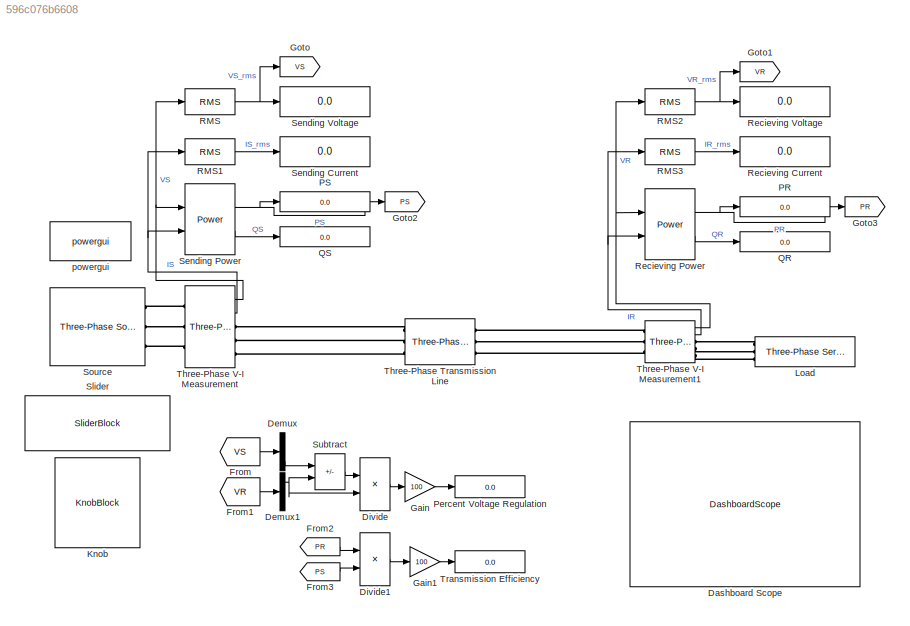
MODEL slx_596c076b6608
KIND model
CONFIG AbsTol = auto
CONFIG EnableMultiTasking = off
CONFIG FixedStep = auto
CONFIG MaxStep = auto
CONFIG MinStep = auto
CONFIG RelTol = 1e-3
CONFIG SampleTimeConstraint = Unconstrained
CONFIG Solver = VariableStepAuto
CONFIG SolverName = VariableStepAuto
CONFIG StartTime = 0.0
CONFIG StopTime = 1.0
BLOCK [DashboardScope] Dashboard Scope
BLOCK [Demux] Demux
  Outputs = 3
  Ports = [1, 3]
BLOCK [Demux] Demux1
  Outputs = 3
  Ports = [1, 3]
BLOCK [Product] Divide
  Inputs = */
  Ports = [2, 1]
BLOCK [Product] Divide1
  Inputs = */
  Ports = [2, 1]
BLOCK [From] From
  GotoTag = VS
BLOCK [From] From1
  GotoTag = VR
BLOCK [From] From2
  GotoTag = PR
  IconDisplay = Signal name
BLOCK [From] From3
  GotoTag = PS
  IconDisplay = Signal name
BLOCK [Gain] Gain
  Gain = 100
BLOCK [Gain] Gain1
  Gain = 100
BLOCK [Goto] Goto
  GotoTag = VS
BLOCK [Goto] Goto1
  GotoTag = VR
BLOCK [Goto] Goto2
  GotoTag = PS
BLOCK [Goto] Goto3
  GotoTag = PR
BLOCK [KnobBlock] Knob
  LabelPosition = Bottom
BLOCK [Reference] Load  REF=powerlib/Elements/Three-Phase
Series RLC Load
  AttributesFormatString = \n
  Ports = [0, 0, 0, 0, 0, 3]
  SourceBlock = powerlib/Elements/Three-Phase\nSeries RLC Load
  SourceProductBaseCode = PS
  SourceType = Three-Phase Series RLC Load
BLOCK [Display] PR
  Decimation = 1
  Format = bank
  Ports = [1]
BLOCK [Display] PS
  Decimation = 1
  Format = bank
  Ports = [1]
BLOCK [Display] Percent Voltage Regulation
  Decimation = 3
  Format = bank
  Ports = [1]
BLOCK [Display] QR
  Decimation = 1
  Format = bank
  Ports = [1]
BLOCK [Display] QS
  Decimation = 1
  Format = bank
  Ports = [1]
BLOCK [Reference] RMS  REF=powerlib_meascontrol/Measurements/RMS
  Ports = [1, 1]
  SourceBlock = powerlib_meascontrol/Measurements/RMS
  SourceProductBaseCode = PS
  SourceType = RMS
BLOCK [Reference] RMS1  REF=powerlib_meascontrol/Measurements/RMS
  Ports = [1, 1]
  SourceBlock = powerlib_meascontrol/Measurements/RMS
  SourceProductBaseCode = PS
  SourceType = RMS
BLOCK [Reference] RMS2  REF=powerlib_meascontrol/Measurements/RMS
  Ports = [1, 1]
  SourceBlock = powerlib_meascontrol/Measurements/RMS
  SourceProductBaseCode = PS
  SourceType = RMS
BLOCK [Reference] RMS3  REF=powerlib_meascontrol/Measurements/RMS
  Ports = [1, 1]
  SourceBlock = powerlib_meascontrol/Measurements/RMS
  SourceProductBaseCode = PS
  SourceType = RMS
BLOCK [Display] Recieving Current
  Decimation = 3
  Format = bank
  Ports = [1]
BLOCK [Reference] Recieving Power  REF=powerlib_meascontrol/Measurements/Power
  Ports = [2, 2]
  SourceBlock = powerlib_meascontrol/Measurements/Power
  SourceProductBaseCode = PS
  SourceType = Power
BLOCK [Display] Recieving Voltage
  Decimation = 3
  Format = bank
  Ports = [1]
BLOCK [Display] Sending Current
  Decimation = 3
  Format = bank
  Ports = [1]
BLOCK [Reference] Sending Power  REF=powerlib_meascontrol/Measurements/Power
  Ports = [2, 2]
  SourceBlock = powerlib_meascontrol/Measurements/Power
  SourceProductBaseCode = PS
  SourceType = Power
BLOCK [Display] Sending Voltage
  Decimation = 3
  Format = bank
  Ports = [1]
BLOCK [SliderBlock] Slider
  LabelPosition = Bottom
  ScaleMax = 750e3
  ScaleMin = 100e3
BLOCK [Reference] Source  REF=powerlib/Electrical
Sources/Three-Phase Source
  Ports = [0, 0, 0, 0, 0, 0, 3]
  SourceBlock = powerlib/Electrical\nSources/Three-Phase Source
  SourceProductBaseCode = PS
  SourceType = Three-Phase Source
BLOCK [Sum] Subtract
  IconShape = rectangular
  Inputs = +-
  Ports = [2, 1]
BLOCK [Reference] Three-Phase Transmission Line  REF=powerlib/Elements/Three-Phase
Series RLC Branch
  AttributesFormatString = \n
  Ports = [0, 0, 0, 0, 0, 3, 3]
  SourceBlock = powerlib/Elements/Three-Phase\nSeries RLC Branch
  SourceProductBaseCode = PS
  SourceType = Three-Phase Series RLC Branch
BLOCK [Reference] Three-Phase V-I Measurement  REF=powerlib/Measurements/Three-Phase
V-I Measurement
  Ports = [0, 2, 0, 0, 0, 3, 3]
  SourceBlock = powerlib/Measurements/Three-Phase\nV-I Measurement
  SourceProductBaseCode = PS
  SourceType = Three-Phase VI Measurement
BLOCK [Reference] Three-Phase V-I Measurement1  REF=powerlib/Measurements/Three-Phase
V-I Measurement
  Ports = [0, 2, 0, 0, 0, 3, 3]
  SourceBlock = powerlib/Measurements/Three-Phase\nV-I Measurement
  SourceProductBaseCode = PS
  SourceType = Three-Phase VI Measurement
BLOCK [Display] Transmission Efficiency
  Decimation = 3
  Format = bank
  Ports = [1]
BLOCK [Reference] powergui  REF=powerlib/powergui
  Ports = []
  Priority = 1
  SourceBlock = powerlib/powergui
  SourceProductBaseCode = PS
  SourceType = PSB option menu block
NET Demux1:1 -> Divide:2, Subtract:2
LINE Demux:3 -> Subtract:1
LINE Divide1:1 -> Gain1:1
LINE Divide:1 -> Gain:1
LINE From1:1 -> Demux1:1
LINE From2:1 -> Divide1:1
LINE From3:1 -> Divide1:2
LINE From:1 -> Demux:1
LINE Gain1:1 -> Transmission Efficiency:1
LINE Gain:1 -> Percent Voltage Regulation:1
LINE RMS1:1 -> Sending Current:1
NET RMS2:1 -> Goto1:1, Recieving Voltage:1
LINE RMS3:1 -> Recieving Current:1
NET RMS:1 -> Goto:1, Sending Voltage:1
NET Recieving Power:1 -> Goto3:1, PR:1
LINE Recieving Power:2 -> QR:1
NET Sending Power:1 -> Goto2:1, PS:1
LINE Sending Power:2 -> QS:1
LINE Subtract:1 -> Divide:1
NET Three-Phase V-I Measurement1:1 -> RMS2:1, Recieving Power:1
NET Three-Phase V-I Measurement1:2 -> RMS3:1, Recieving Power:2
NET Three-Phase V-I Measurement:1 -> RMS:1, Sending Power:1
NET Three-Phase V-I Measurement:2 -> RMS1:1, Sending Power:2
PLINE Load:LConn1 -- Three-Phase V-I Measurement1:RConn1
PLINE Load:LConn2 -- Three-Phase V-I Measurement1:RConn2
PLINE Load:LConn3 -- Three-Phase V-I Measurement1:RConn3
PLINE Source:RConn1 -- Three-Phase V-I Measurement:LConn1
PLINE Source:RConn2 -- Three-Phase V-I Measurement:LConn2
PLINE Source:RConn3 -- Three-Phase V-I Measurement:LConn3
PLINE Three-Phase Transmission Line:LConn1 -- Three-Phase V-I Measurement:RConn1
PLINE Three-Phase Transmission Line:LConn2 -- Three-Phase V-I Measurement:RConn2
PLINE Three-Phase Transmission Line:LConn3 -- Three-Phase V-I Measurement:RConn3
PLINE Three-Phase Transmission Line:RConn1 -- Three-Phase V-I Measurement1:LConn1
PLINE Three-Phase Transmission Line:RConn2 -- Three-Phase V-I Measurement1:LConn2
PLINE Three-Phase Transmission Line:RConn3 -- Three-Phase V-I Measurement1:LConn3
note: NET lines group one-source signal fan-out (src -> all destinations, sorted); 1:1 wires keep LINE
